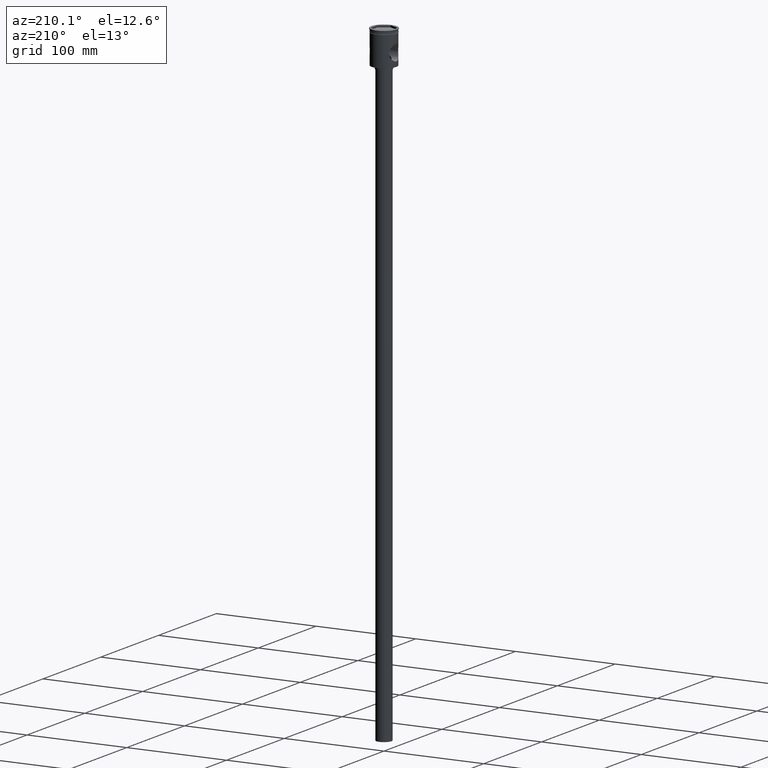
[diagram: clean part render]
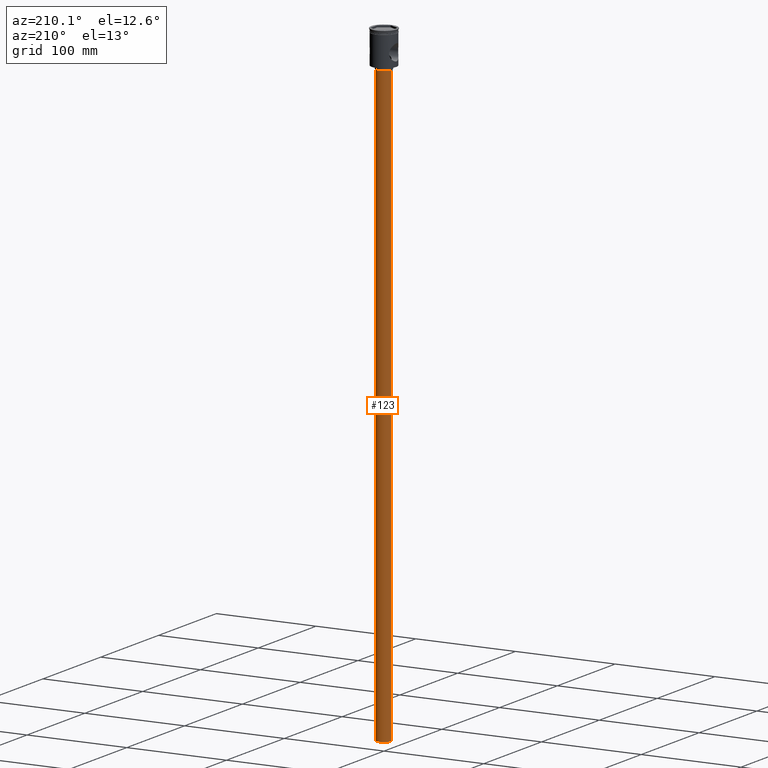
[diagram: same view with one face highlighted and labeled with its STEP entity id]
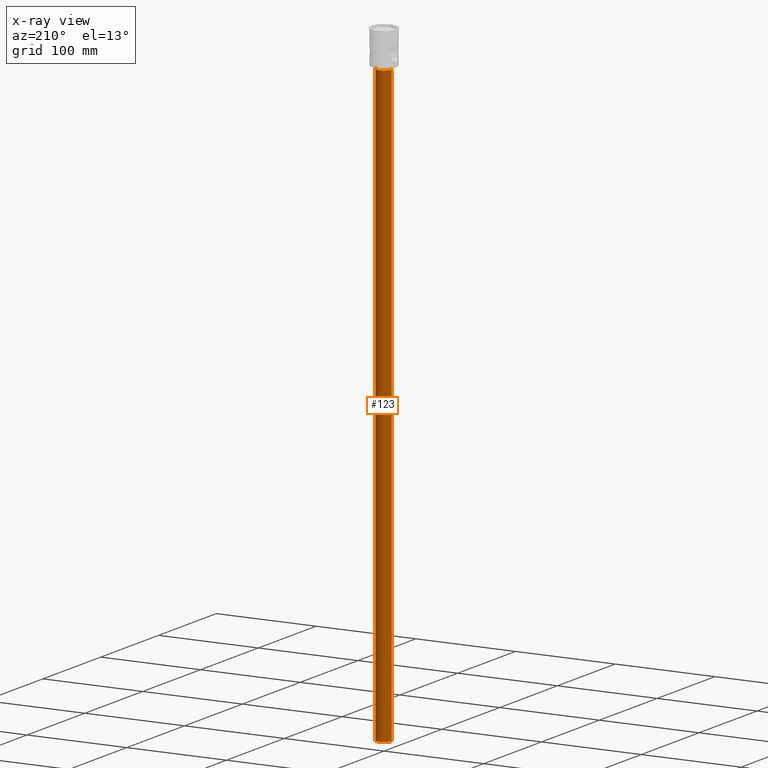
[diagram: x-ray of the same camera — body ghosted, the highlighted face saturated]
A machine part, auxiliary view. The second image highlights one B-rep face of the part: STEP entity #123.
The next image is the same camera in x-ray: the body ghosted, the highlighted face saturated — about 0% of this face is hidden behind the body in this view.
In plain terms, the highlighted cylindrical surface (edge-blend (fillet) strip) has radius 7.5 mm, axis along (-0, -0, 1).
Its self-contained STEP definition (entity closure, byte-faithful):
#24 = EDGE_CURVE ( 'NONE', #662, #321, #55, .T. ) ;
#55 = LINE ( 'NONE', #1368, #82 ) ;
#56 = CIRCLE ( 'NONE', #540, 7.500000000000000000 ) ;
#82 = VECTOR ( 'NONE', #1241, 1000.000000000000000 ) ;
#123 = ADVANCED_FACE ( 'NONE', ( #312 ), #1408, .T. ) ;
#134 = AXIS2_PLACEMENT_3D ( 'NONE', #335, #1399, #1507 ) ;
#143 = DIRECTION ( 'NONE',  ( 0.000000000000000000, 0.000000000000000000, -1.000000000000000000 ) ) ;
#170 = ORIENTED_EDGE ( 'NONE', *, *, #24, .F. ) ;
#241 = CARTESIAN_POINT ( 'NONE',  ( 0.000000000000000000, 0.000000000000000000, -633.5000000000000000 ) ) ;
#286 = ORIENTED_EDGE ( 'NONE', *, *, #1154, .T. ) ;
#312 = FACE_OUTER_BOUND ( 'NONE', #423, .T. ) ;
#321 = VERTEX_POINT ( 'NONE', #1232 ) ;
#335 = CARTESIAN_POINT ( 'NONE',  ( 0.000000000000000000, 0.000000000000000000, -633.5000000000000000 ) ) ;
#360 = CIRCLE ( 'NONE', #1169, 7.500000000000000000 ) ;
#400 = VERTEX_POINT ( 'NONE', #417 ) ;
#417 = CARTESIAN_POINT ( 'NONE',  ( -7.500000000000000000, 9.184850993605147944E-16, -36.50000000000000711 ) ) ;
#423 = EDGE_LOOP ( 'NONE', ( #1102, #286, #609, #170 ) ) ;
#473 = CARTESIAN_POINT ( 'NONE',  ( -7.500000000000000000, 9.184850993605147944E-16, -633.5000000000000000 ) ) ;
#540 = AXIS2_PLACEMENT_3D ( 'NONE', #241, #143, #869 ) ;
#609 = ORIENTED_EDGE ( 'NONE', *, *, #1180, .T. ) ;
#649 = VECTOR ( 'NONE', #828, 1000.000000000000000 ) ;
#662 = VERTEX_POINT ( 'NONE', #1230 ) ;
#722 = EDGE_CURVE ( 'NONE', #1248, #662, #56, .T. ) ;
#828 = DIRECTION ( 'NONE',  ( -0.000000000000000000, -0.000000000000000000, 1.000000000000000000 ) ) ;
#843 = CARTESIAN_POINT ( 'NONE',  ( 0.000000000000000000, 0.000000000000000000, -36.50000000000000711 ) ) ;
#869 = DIRECTION ( 'NONE',  ( -1.000000000000000000, 0.000000000000000000, 0.000000000000000000 ) ) ;
#1057 = CARTESIAN_POINT ( 'NONE',  ( -7.500000000000000000, 9.184850993605147944E-16, -633.5000000000000000 ) ) ;
#1064 = DIRECTION ( 'NONE',  ( 0.000000000000000000, 0.000000000000000000, -1.000000000000000000 ) ) ;
#1102 = ORIENTED_EDGE ( 'NONE', *, *, #722, .F. ) ;
#1154 = EDGE_CURVE ( 'NONE', #1248, #400, #1304, .T. ) ;
#1169 = AXIS2_PLACEMENT_3D ( 'NONE', #843, #1064, #1192 ) ;
#1180 = EDGE_CURVE ( 'NONE', #400, #321, #360, .T. ) ;
#1192 = DIRECTION ( 'NONE',  ( -1.000000000000000000, 0.000000000000000000, 0.000000000000000000 ) ) ;
#1230 = CARTESIAN_POINT ( 'NONE',  ( 7.500000000000000000, 0.000000000000000000, -633.5000000000000000 ) ) ;
#1232 = CARTESIAN_POINT ( 'NONE',  ( 7.500000000000000000, 0.000000000000000000, -36.50000000000000711 ) ) ;
#1241 = DIRECTION ( 'NONE',  ( -0.000000000000000000, -0.000000000000000000, 1.000000000000000000 ) ) ;
#1248 = VERTEX_POINT ( 'NONE', #473 ) ;
#1304 = LINE ( 'NONE', #1057, #649 ) ;
#1368 = CARTESIAN_POINT ( 'NONE',  ( 7.500000000000000000, 0.000000000000000000, -633.5000000000000000 ) ) ;
#1399 = DIRECTION ( 'NONE',  ( -0.000000000000000000, -0.000000000000000000, 1.000000000000000000 ) ) ;
#1408 = CYLINDRICAL_SURFACE ( 'NONE', #134, 7.500000000000000000 ) ;
#1507 = DIRECTION ( 'NONE',  ( 1.000000000000000000, 0.000000000000000000, 0.000000000000000000 ) ) ;